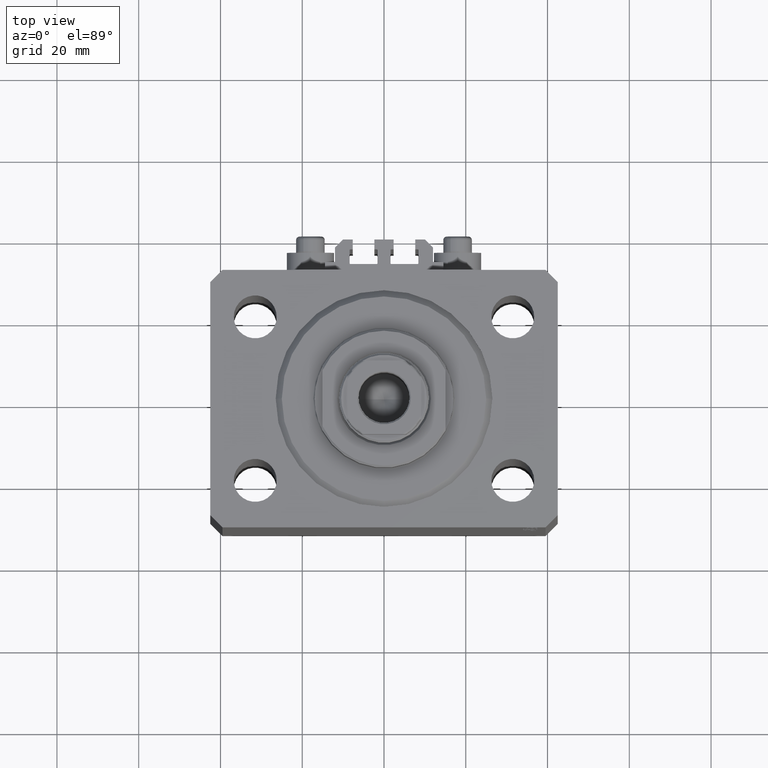
[diagram: clean part render]
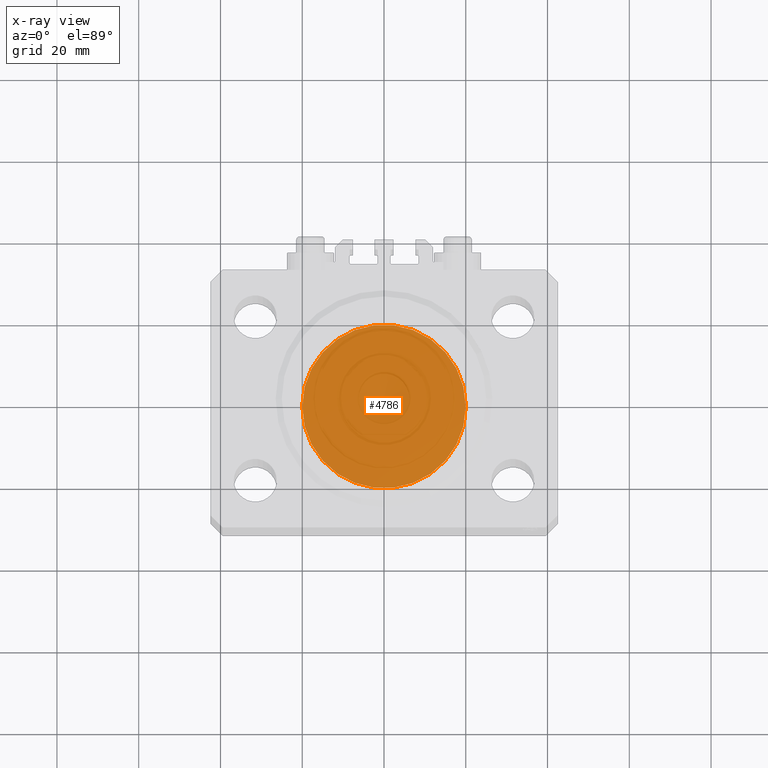
[diagram: x-ray — body ghosted, one internal face saturated and labeled with its STEP entity id]
A machine part, top view, then the same camera in x-ray: the body is ghosted and one INTERNAL B-rep face — a face not visible from any outside direction — is saturated and labeled: STEP entity #4786.
In plain terms, the highlighted planar face has unit normal (0, 0, 1).
Its self-contained STEP definition (entity closure, byte-faithful):
#5 = CIRCLE ( 'NONE', #32867, 20.00000000000000000 ) ;
#514 = DIRECTION ( 'NONE',  ( 0.000000000000000000, 0.000000000000000000, 1.000000000000000000 ) ) ;
#591 = DIRECTION ( 'NONE',  ( 1.000000000000000000, 0.000000000000000000, -0.000000000000000000 ) ) ;
#1563 = EDGE_CURVE ( 'NONE', #9597, #44092, #26155, .T. ) ;
#2267 = ORIENTED_EDGE ( 'NONE', *, *, #19858, .F. ) ;
#4786 = ADVANCED_FACE ( 'NONE', ( #22378 ), #14718, .F. ) ;
#8874 = CARTESIAN_POINT ( 'NONE',  ( 0.000000000000000000, 0.000000000000000000, 0.000000000000000000 ) ) ;
#9129 = ORIENTED_EDGE ( 'NONE', *, *, #1563, .F. ) ;
#9597 = VERTEX_POINT ( 'NONE', #28714 ) ;
#11770 = DIRECTION ( 'NONE',  ( 1.000000000000000000, 0.000000000000000000, 0.000000000000000000 ) ) ;
#14718 = PLANE ( 'NONE',  #18605 ) ;
#16869 = DIRECTION ( 'NONE',  ( 0.000000000000000000, 0.000000000000000000, 1.000000000000000000 ) ) ;
#18605 = AXIS2_PLACEMENT_3D ( 'NONE', #32672, #36996, #591 ) ;
#19858 = EDGE_CURVE ( 'NONE', #44092, #9597, #5, .T. ) ;
#20148 = EDGE_LOOP ( 'NONE', ( #9129, #2267 ) ) ;
#22378 = FACE_OUTER_BOUND ( 'NONE', #20148, .T. ) ;
#24620 = AXIS2_PLACEMENT_3D ( 'NONE', #42004, #16869, #31469 ) ;
#26155 = CIRCLE ( 'NONE', #24620, 20.00000000000000000 ) ;
#28714 = CARTESIAN_POINT ( 'NONE',  ( -20.00000000000000000, 0.000000000000000000, 0.000000000000000000 ) ) ;
#31469 = DIRECTION ( 'NONE',  ( 1.000000000000000000, 0.000000000000000000, 0.000000000000000000 ) ) ;
#32672 = CARTESIAN_POINT ( 'NONE',  ( 0.000000000000000000, 0.000000000000000000, 0.000000000000000000 ) ) ;
#32867 = AXIS2_PLACEMENT_3D ( 'NONE', #8874, #514, #11770 ) ;
#33884 = CARTESIAN_POINT ( 'NONE',  ( 20.00000000000000000, 2.449293598294706513E-15, 0.000000000000000000 ) ) ;
#36996 = DIRECTION ( 'NONE',  ( 0.000000000000000000, 0.000000000000000000, 1.000000000000000000 ) ) ;
#42004 = CARTESIAN_POINT ( 'NONE',  ( 0.000000000000000000, 0.000000000000000000, 0.000000000000000000 ) ) ;
#44092 = VERTEX_POINT ( 'NONE', #33884 ) ;